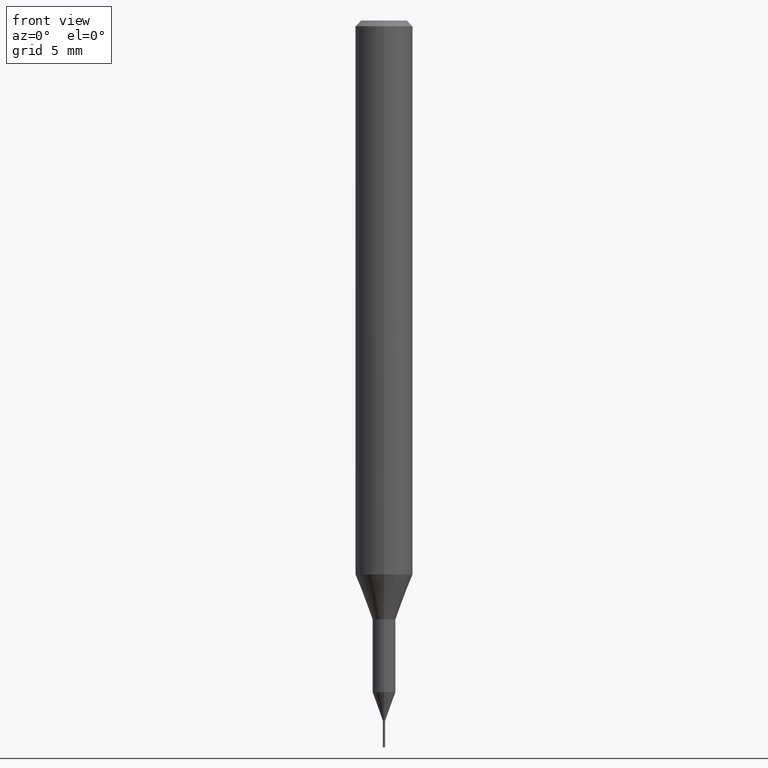
[diagram: clean part render]
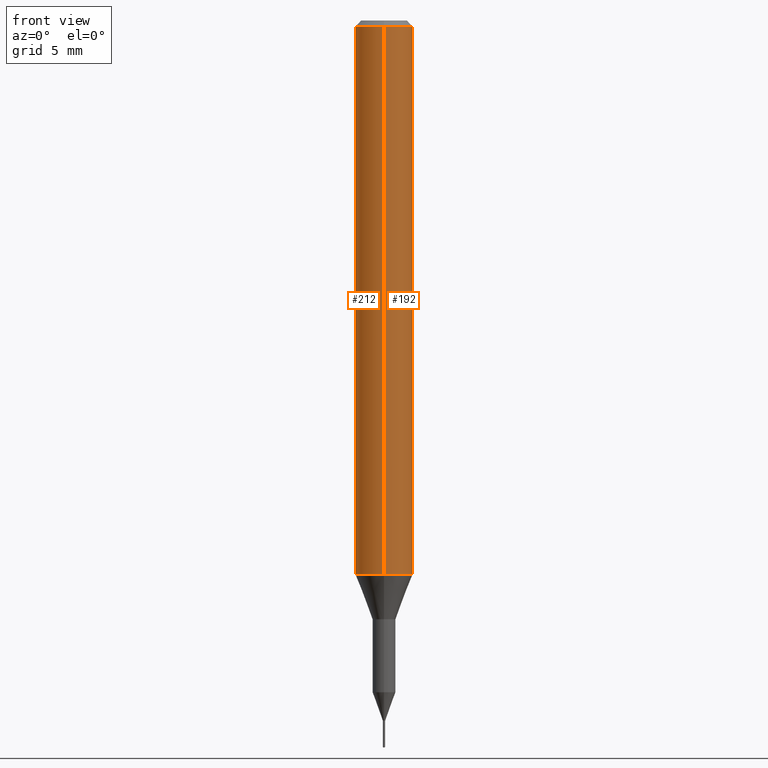
[diagram: same view with one multi-face feature highlighted, each face labeled with its STEP entity id]
A machine part, front view. The highlighted faces form ONE feature: a constant-radius fillet chain: 2 tangent blend faces with common blend radius 1.5 mm. The faces share edges in the B-rep.
Their STEP definitions:
[1] entity #212 (Cylinder):
#118=EDGE_CURVE('',#154,#230,#295,.T.);
#150=VERTEX_POINT('',#333);
#154=VERTEX_POINT('',#338);
#164=VERTEX_POINT('',#348);
#174=EDGE_CURVE('',#150,#164,#359,.T.);
#182=EDGE_CURVE('',#230,#150,#367,.T.);
#208=EDGE_CURVE('',#154,#164,#400,.T.);
#212=ADVANCED_FACE('',(#404),#405,.T.);
#230=VERTEX_POINT('',#424);
#295=LINE('',#489,#490);
#333=CARTESIAN_POINT('',(0.0,1.5,-0.300000000000001));
#338=CARTESIAN_POINT('',(1.83690953073357E-016,-1.5,-28.955));
#348=CARTESIAN_POINT('',(0.0,1.5,-28.955));
#359=LINE('',#572,#573);
#367=CIRCLE('',#584,1.5);
#400=CIRCLE('',#625,1.5);
#404=FACE_OUTER_BOUND('',#629,.T.);
#405=CYLINDRICAL_SURFACE('',#630,1.5);
#424=CARTESIAN_POINT('',(1.83690953073357E-016,-1.5,-0.300000000000001));
#489=CARTESIAN_POINT('',(1.83690953073357E-016,-1.5,-14.6275));
#490=VECTOR('',#712,1.0);
#572=CARTESIAN_POINT('',(-1.83690953073357E-016,1.5,-14.6275));
#573=VECTOR('',#789,1.0);
#584=AXIS2_PLACEMENT_3D('',#796,#797,#798);
#625=AXIS2_PLACEMENT_3D('',#863,#864,#865);
#629=EDGE_LOOP('',(#867,#868,#869,#870));
#630=AXIS2_PLACEMENT_3D('',#871,#872,#873);
#712=DIRECTION('',(-0.0,-0.0,1.0));
#789=DIRECTION('',(0.0,0.0,-1.0));
#796=CARTESIAN_POINT('',(0.0,0.0,-0.300000000000001));
#797=DIRECTION('',(0.0,0.0,-1.0));
#798=DIRECTION('',(0.0,1.0,0.0));
#863=CARTESIAN_POINT('',(0.0,0.0,-28.955));
#864=DIRECTION('',(0.0,0.0,-1.0));
#865=DIRECTION('',(0.0,1.0,0.0));
#867=ORIENTED_EDGE('',*,*,#174,.T.);
#868=ORIENTED_EDGE('',*,*,#208,.F.);
#869=ORIENTED_EDGE('',*,*,#118,.T.);
#870=ORIENTED_EDGE('',*,*,#182,.T.);
#871=CARTESIAN_POINT('',(0.0,0.0,-14.6275));
#872=DIRECTION('',(-0.0,-0.0,1.0));
#873=DIRECTION('',(0.0,1.0,0.0));
[2] entity #192 (Cylinder):
#118=EDGE_CURVE('',#154,#230,#295,.T.);
#150=VERTEX_POINT('',#333);
#154=VERTEX_POINT('',#338);
#164=VERTEX_POINT('',#348);
#174=EDGE_CURVE('',#150,#164,#359,.T.);
#192=ADVANCED_FACE('',(#381),#382,.T.);
#194=EDGE_CURVE('',#164,#154,#384,.T.);
#214=EDGE_CURVE('',#150,#230,#407,.T.);
#230=VERTEX_POINT('',#424);
#295=LINE('',#489,#490);
#333=CARTESIAN_POINT('',(0.0,1.5,-0.300000000000001));
#338=CARTESIAN_POINT('',(1.83690953073357E-016,-1.5,-28.955));
#348=CARTESIAN_POINT('',(0.0,1.5,-28.955));
#359=LINE('',#572,#573);
#381=FACE_OUTER_BOUND('',#598,.T.);
#382=CYLINDRICAL_SURFACE('',#599,1.5);
#384=CIRCLE('',#602,1.5);
#407=CIRCLE('',#633,1.5);
#424=CARTESIAN_POINT('',(1.83690953073357E-016,-1.5,-0.300000000000001));
#489=CARTESIAN_POINT('',(1.83690953073357E-016,-1.5,-14.6275));
#490=VECTOR('',#712,1.0);
#572=CARTESIAN_POINT('',(-1.83690953073357E-016,1.5,-14.6275));
#573=VECTOR('',#789,1.0);
#598=EDGE_LOOP('',(#831,#832,#833,#834));
#599=AXIS2_PLACEMENT_3D('',#835,#836,#837);
#602=AXIS2_PLACEMENT_3D('',#838,#839,#840);
#633=AXIS2_PLACEMENT_3D('',#874,#875,#876);
#712=DIRECTION('',(-0.0,-0.0,1.0));
#789=DIRECTION('',(0.0,0.0,-1.0));
#831=ORIENTED_EDGE('',*,*,#174,.F.);
#832=ORIENTED_EDGE('',*,*,#214,.T.);
#833=ORIENTED_EDGE('',*,*,#118,.F.);
#834=ORIENTED_EDGE('',*,*,#194,.F.);
#835=CARTESIAN_POINT('',(0.0,0.0,-14.6275));
#836=DIRECTION('',(-0.0,-0.0,1.0));
#837=DIRECTION('',(0.0,1.0,0.0));
#838=CARTESIAN_POINT('',(0.0,0.0,-28.955));
#839=DIRECTION('',(0.0,0.0,-1.0));
#840=DIRECTION('',(0.0,1.0,0.0));
#874=CARTESIAN_POINT('',(0.0,0.0,-0.300000000000001));
#875=DIRECTION('',(0.0,0.0,-1.0));
#876=DIRECTION('',(0.0,1.0,0.0));